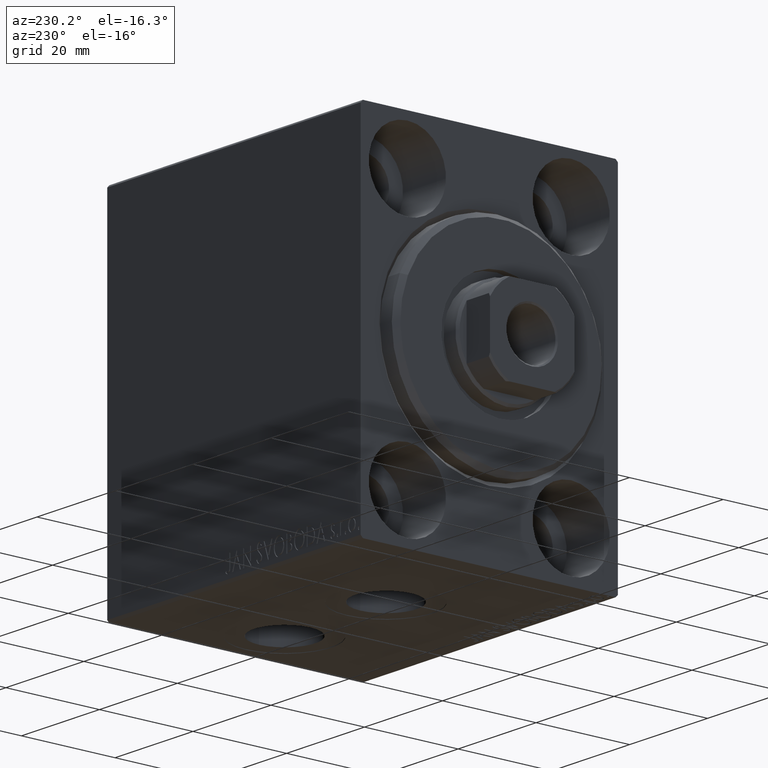
[diagram: clean part render]
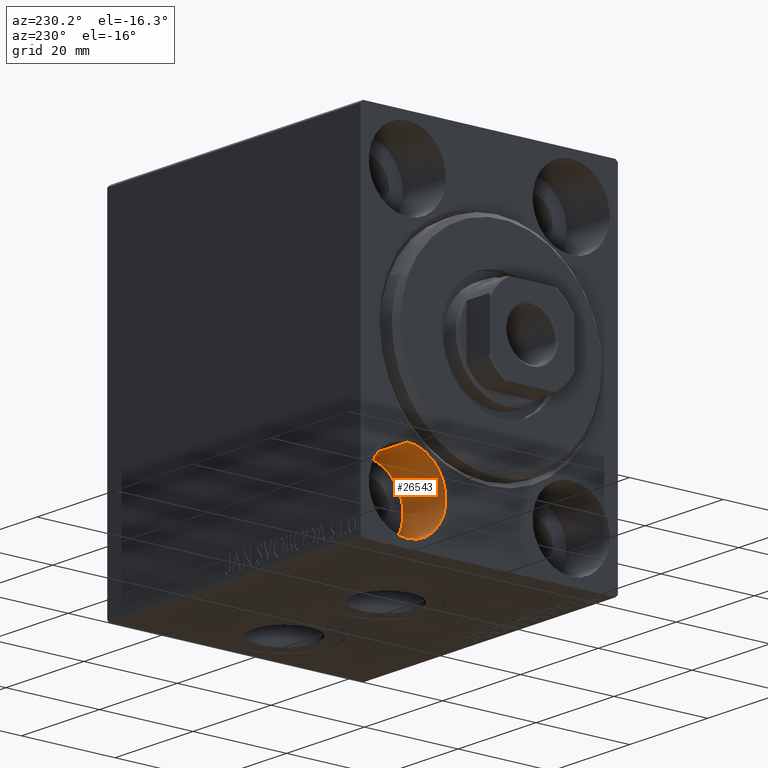
[diagram: same view with one face highlighted and labeled with its STEP entity id]
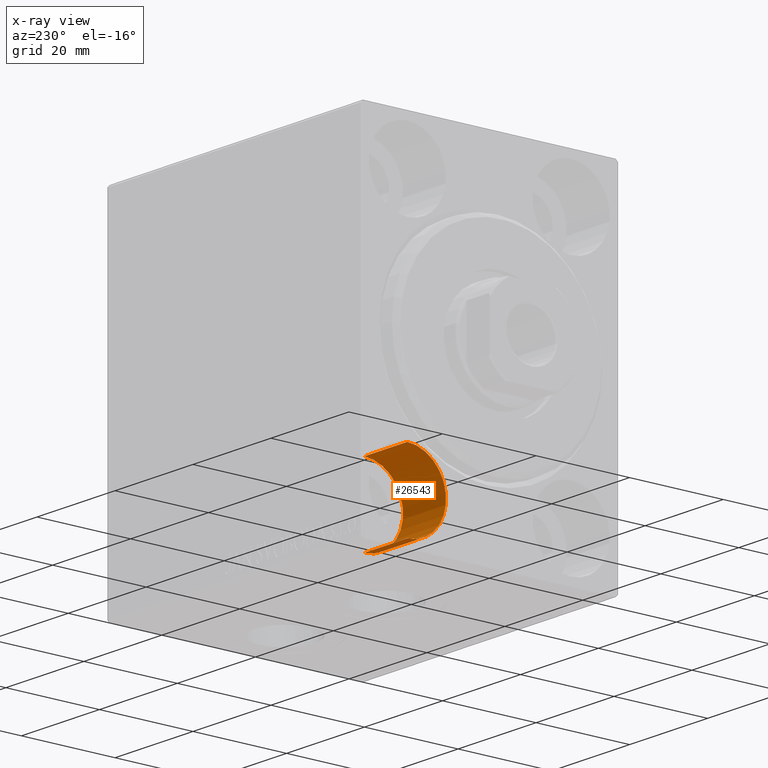
[diagram: x-ray of the same camera — body ghosted, the highlighted face saturated]
A machine part, auxiliary view. The second image highlights one B-rep face of the part: STEP entity #26543.
The next image is the same camera in x-ray: the body ghosted, the highlighted face saturated — about 1% of this face is hidden behind the body in this view.
In plain terms, the highlighted cylindrical surface (partial cylindrical patch) has radius 8.25 mm, axis along (-1, -0, -0).
Its self-contained STEP definition (entity closure, byte-faithful):
#321 = ORIENTED_EDGE ( 'NONE', *, *, #36348, .F. ) ;
#330 = EDGE_CURVE ( 'NONE', #7545, #33890, #6100, .T. ) ;
#1640 = CARTESIAN_POINT ( 'NONE',  ( 11.00000000000000000, 17.49999999999999645, -19.25000000000000355 ) ) ;
#2049 = ORIENTED_EDGE ( 'NONE', *, *, #10037, .T. ) ;
#2745 = AXIS2_PLACEMENT_3D ( 'NONE', #3158, #36548, #37209 ) ;
#3158 = CARTESIAN_POINT ( 'NONE',  ( 0.000000000000000000, 17.49999999999999645, -27.50000000000000355 ) ) ;
#4998 = DIRECTION ( 'NONE',  ( -1.000000000000000000, -0.000000000000000000, -0.000000000000000000 ) ) ;
#6100 = LINE ( 'NONE', #22804, #19659 ) ;
#6367 = ORIENTED_EDGE ( 'NONE', *, *, #28055, .F. ) ;
#7545 = VERTEX_POINT ( 'NONE', #31345 ) ;
#7987 = DIRECTION ( 'NONE',  ( -1.000000000000000000, -0.000000000000000000, -0.000000000000000000 ) ) ;
#8325 = LINE ( 'NONE', #1640, #43731 ) ;
#8665 = CARTESIAN_POINT ( 'NONE',  ( 0.000000000000000000, 17.49999999999999645, -35.75000000000000711 ) ) ;
#10037 = EDGE_CURVE ( 'NONE', #33890, #29724, #37578, .T. ) ;
#11652 = CARTESIAN_POINT ( 'NONE',  ( 11.00000000000000000, 17.49999999999999645, -19.25000000000000355 ) ) ;
#11761 = AXIS2_PLACEMENT_3D ( 'NONE', #22004, #7987, #28880 ) ;
#17161 = EDGE_LOOP ( 'NONE', ( #321, #40779, #2049, #6367 ) ) ;
#18963 = DIRECTION ( 'NONE',  ( -1.000000000000000000, 0.000000000000000000, 0.000000000000000000 ) ) ;
#19192 = DIRECTION ( 'NONE',  ( 0.000000000000000000, 0.000000000000000000, 1.000000000000000000 ) ) ;
#19659 = VECTOR ( 'NONE', #36371, 1000.000000000000000 ) ;
#22004 = CARTESIAN_POINT ( 'NONE',  ( 11.00000000000000000, 17.49999999999999645, -27.50000000000000355 ) ) ;
#22220 = FACE_OUTER_BOUND ( 'NONE', #17161, .T. ) ;
#22804 = CARTESIAN_POINT ( 'NONE',  ( 11.00000000000000000, 17.49999999999999645, -35.75000000000000711 ) ) ;
#26067 = CARTESIAN_POINT ( 'NONE',  ( 11.00000000000000000, 17.49999999999999645, -27.50000000000000355 ) ) ;
#26543 = ADVANCED_FACE ( 'NONE', ( #22220 ), #42446, .F. ) ;
#27112 = VERTEX_POINT ( 'NONE', #11652 ) ;
#28055 = EDGE_CURVE ( 'NONE', #27112, #29724, #8325, .T. ) ;
#28880 = DIRECTION ( 'NONE',  ( 0.000000000000000000, 0.000000000000000000, 1.000000000000000000 ) ) ;
#29036 = AXIS2_PLACEMENT_3D ( 'NONE', #26067, #18963, #19192 ) ;
#29724 = VERTEX_POINT ( 'NONE', #35363 ) ;
#31345 = CARTESIAN_POINT ( 'NONE',  ( 11.00000000000000000, 17.49999999999999645, -35.75000000000000711 ) ) ;
#33890 = VERTEX_POINT ( 'NONE', #8665 ) ;
#35363 = CARTESIAN_POINT ( 'NONE',  ( 0.000000000000000000, 17.49999999999999645, -19.25000000000000355 ) ) ;
#36348 = EDGE_CURVE ( 'NONE', #7545, #27112, #42529, .T. ) ;
#36371 = DIRECTION ( 'NONE',  ( -1.000000000000000000, -0.000000000000000000, -0.000000000000000000 ) ) ;
#36548 = DIRECTION ( 'NONE',  ( -1.000000000000000000, 0.000000000000000000, 0.000000000000000000 ) ) ;
#37209 = DIRECTION ( 'NONE',  ( 0.000000000000000000, 0.000000000000000000, 1.000000000000000000 ) ) ;
#37578 = CIRCLE ( 'NONE', #2745, 8.250000000000000000 ) ;
#40779 = ORIENTED_EDGE ( 'NONE', *, *, #330, .T. ) ;
#42446 = CYLINDRICAL_SURFACE ( 'NONE', #11761, 8.250000000000000000 ) ;
#42529 = CIRCLE ( 'NONE', #29036, 8.250000000000000000 ) ;
#43731 = VECTOR ( 'NONE', #4998, 1000.000000000000000 ) ;